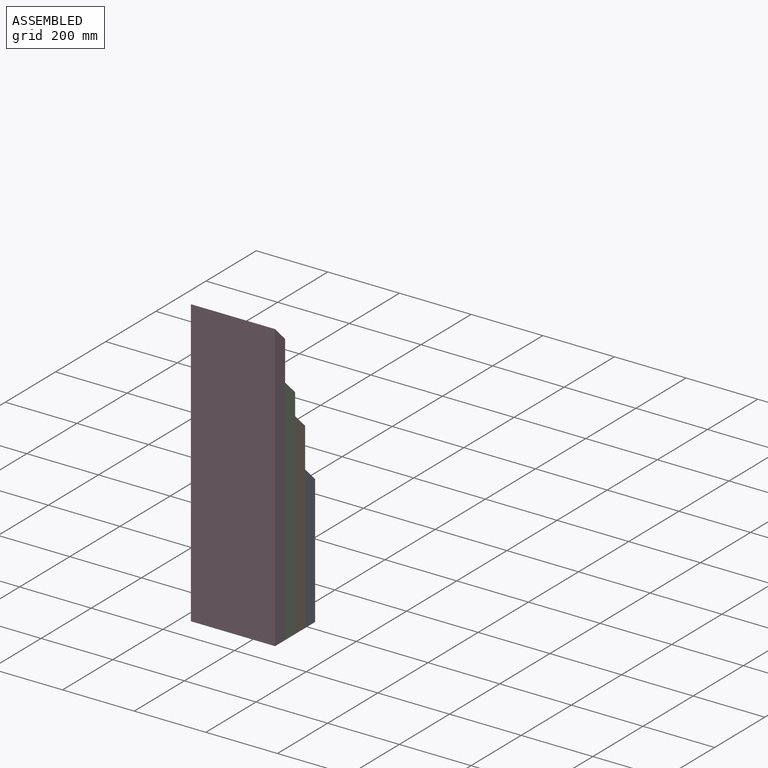
[diagram: assembled view]
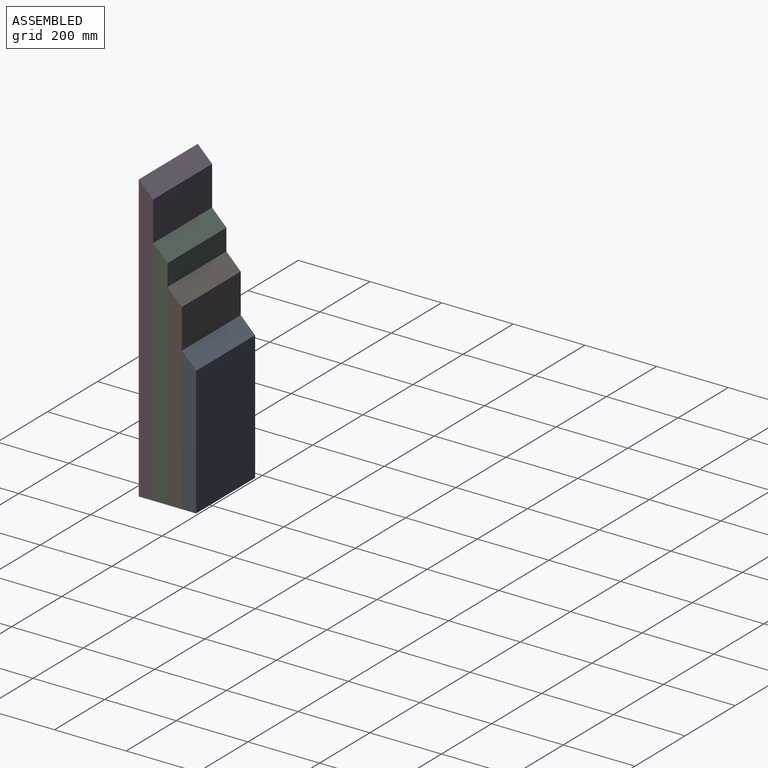
[diagram: assembled view, second angle]
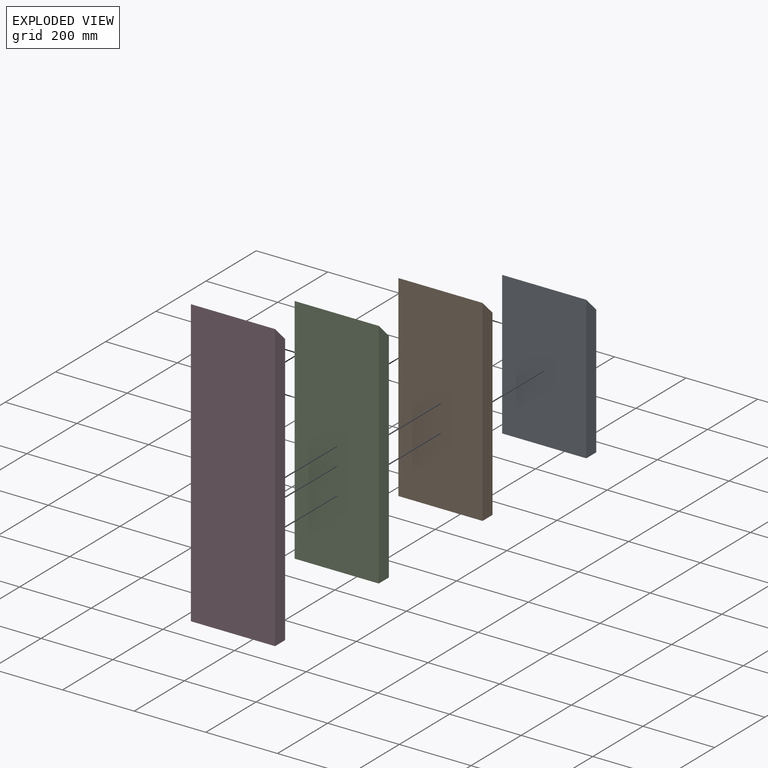
[diagram: exploded view]
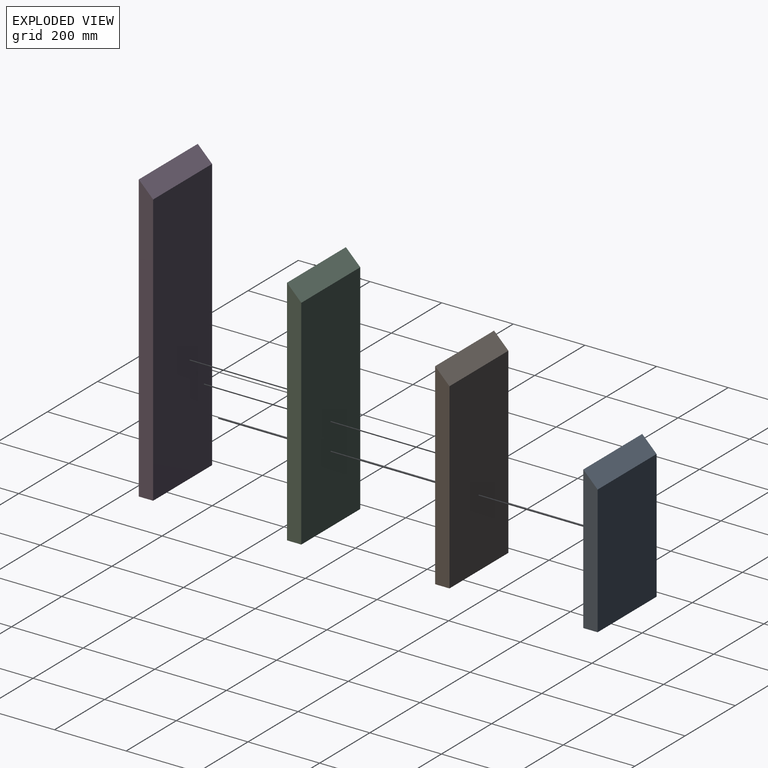
[diagram: exploded view, second angle]
ASSEMBLY  parts=4 mates=3
PART A: 6 faces, bbox 235x40x400 mm
  f0: plane 400x40mm, normal (-1,0,0), area 15200mm2, adj f1,f3,f4,f5
  f1: plane 235x40mm, normal (0,0,-1), area 9400mm2, adj f0,f2,f3,f4
  f2: plane 400x40mm, normal (1,0,0), area 15200mm2, adj f1,f3,f4,f5
  f3: plane 400x235mm, normal (0,-1,0), area 94000mm2, adj f0,f1,f2,f5
  f4: plane 360x235mm, normal (0,1,0), area 84600mm2, adj f0,f1,f2,f5
  f5: plane 235x40mm, normal (0,0.71,0.71), area 13293.6mm2, adj f0,f2,f3,f4
PART B: 6 faces, bbox 235x40x550 mm
  f0: plane 550x40mm, normal (-1,0,0), area 21200mm2, adj f1,f3,f4,f5
  f1: plane 235x40mm, normal (0,0,-1), area 9400mm2, adj f0,f2,f3,f4
  f2: plane 550x40mm, normal (1,0,0), area 21200mm2, adj f1,f3,f4,f5
  f3: plane 550x235mm, normal (0,-1,0), area 129250mm2, adj f0,f1,f2,f5
  f4: plane 510x235mm, normal (0,1,0), area 119850mm2, adj f0,f1,f2,f5
  f5: plane 235x40mm, normal (0,0.71,0.71), area 13293.6mm2, adj f0,f2,f3,f4
PART C: 6 faces, bbox 235x40x650 mm
  f0: plane 650x40mm, normal (-1,0,0), area 25200mm2, adj f1,f3,f4,f5
  f1: plane 235x40mm, normal (0,0,-1), area 9400mm2, adj f0,f2,f3,f4
  f2: plane 650x40mm, normal (1,0,0), area 25200mm2, adj f1,f3,f4,f5
  f3: plane 650x235mm, normal (0,-1,0), area 152750mm2, adj f0,f1,f2,f5
  f4: plane 610x235mm, normal (0,1,0), area 143350mm2, adj f0,f1,f2,f5
  f5: plane 235x40mm, normal (0,0.71,0.71), area 13293.6mm2, adj f0,f2,f3,f4
PART D: 6 faces, bbox 235x40x800 mm
  f0: plane 800x40mm, normal (-1,0,0), area 31200mm2, adj f1,f3,f4,f5
  f1: plane 235x40mm, normal (0,0,-1), area 9400mm2, adj f0,f2,f3,f4
  f2: plane 800x40mm, normal (1,0,0), area 31200mm2, adj f1,f3,f4,f5
  f3: plane 760x235mm, normal (0,-1,0), area 178600mm2, adj f0,f1,f2,f5
  f4: plane 800x235mm, normal (0,1,0), area 188000mm2, adj f0,f1,f2,f5
  f5: plane 235x40mm, normal (0,-0.71,0.71), area 13293.6mm2, adj f0,f2,f3,f4
PLACE A t=(243.16,9.91,760.14)mm
PLACE B t=(243.16,-30.09,760.14)mm
PLACE C t=(243.16,-70.09,760.14)mm
PLACE D rot(axis=(0,0,1),180deg) t=(478.16,-150.09,760.14)mm
MATE fastened B.f4 <-> A.f3  axis (0,1,0) through (360.66,-30.09,760.14)mm
MATE fastened C.f3 <-> D.f3  axis (0,-1,0) through (360.66,-110.09,760.14)mm
MATE fastened B.f3 <-> C.f4  axis (0,-1,0) through (360.66,-70.09,760.14)mm
